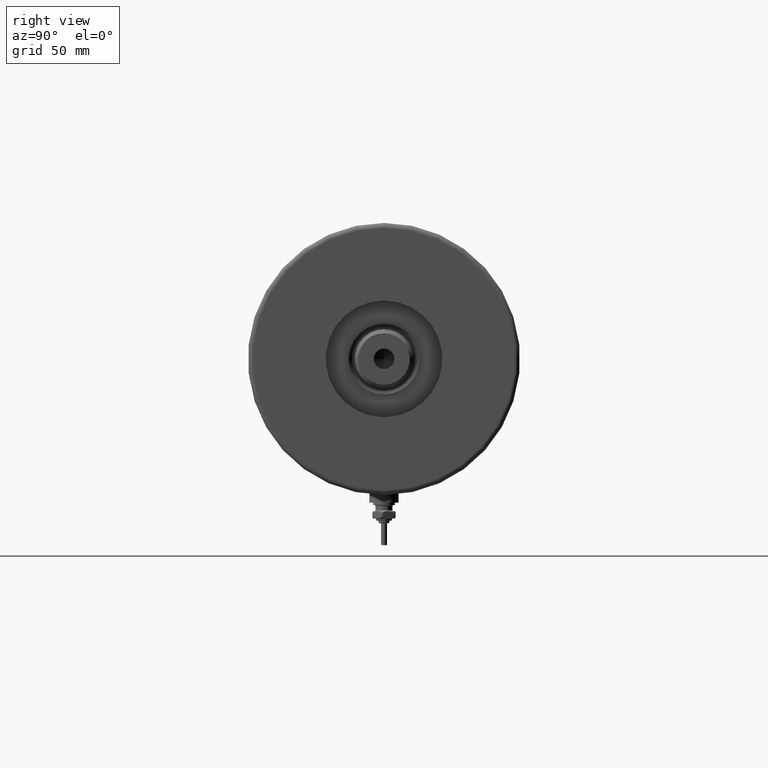
[diagram: clean part render]
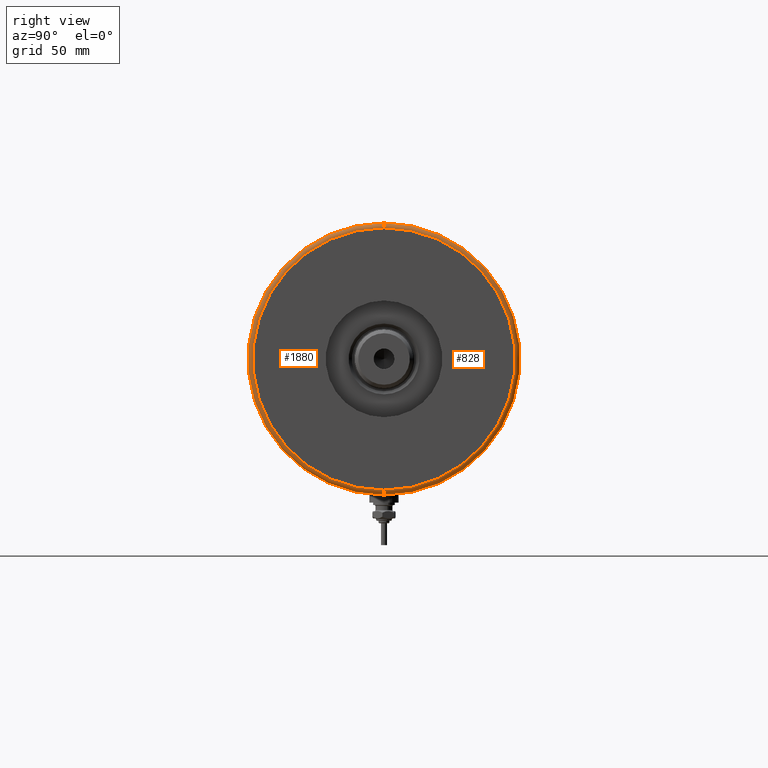
[diagram: same view with one multi-face feature highlighted, each face labeled with its STEP entity id]
A machine part, right view. The highlighted faces form ONE feature: a constant-radius fillet chain: 2 tangent blend faces with common blend radius 2 mm. The faces share edges in the B-rep.
Their STEP definitions:
[1] entity #828 (Torus):
#229 = CARTESIAN_POINT ( 'NONE',  ( -54.00000000000000000, 6.735557395310443404E-15, 32.00000000000000000 ) ) ;
#271 = DIRECTION ( 'NONE',  ( 1.000000000000000000, 0.000000000000000000, 0.000000000000000000 ) ) ;
#307 = ORIENTED_EDGE ( 'NONE', *, *, #2292, .F. ) ;
#314 = DIRECTION ( 'NONE',  ( 1.000000000000000000, 0.000000000000000000, 0.000000000000000000 ) ) ;
#350 = DIRECTION ( 'NONE',  ( 0.000000000000000000, -1.000000000000000000, 0.000000000000000000 ) ) ;
#373 = CARTESIAN_POINT ( 'NONE',  ( 54.00000000000000000, 0.000000000000000000, 32.00000000000000000 ) ) ;
#421 = ORIENTED_EDGE ( 'NONE', *, *, #3175, .F. ) ;
#500 = DIRECTION ( 'NONE',  ( -1.000000000000000000, 1.224646799147353454E-16, 0.000000000000000000 ) ) ;
#828 = ADVANCED_FACE ( 'NONE', ( #2207 ), #4640, .T. ) ;
#830 = CARTESIAN_POINT ( 'NONE',  ( 54.00000000000000000, 0.000000000000000000, 30.00000000000000000 ) ) ;
#1101 = CARTESIAN_POINT ( 'NONE',  ( -54.00000000000000000, 6.613092715395707467E-15, 30.00000000000000000 ) ) ;
#1248 = DIRECTION ( 'NONE',  ( 0.000000000000000000, 0.000000000000000000, 1.000000000000000000 ) ) ;
#1664 = CARTESIAN_POINT ( 'NONE',  ( 0.000000000000000000, 0.000000000000000000, 30.00000000000000000 ) ) ;
#1696 = CIRCLE ( 'NONE', #3518, 56.00000000000000000 ) ;
#1701 = DIRECTION ( 'NONE',  ( 0.000000000000000000, 0.000000000000000000, 1.000000000000000000 ) ) ;
#1909 = CARTESIAN_POINT ( 'NONE',  ( -56.00000000000000000, 0.000000000000000000, 30.00000000000000000 ) ) ;
#2137 = VERTEX_POINT ( 'NONE', #1909 ) ;
#2207 = FACE_OUTER_BOUND ( 'NONE', #5921, .T. ) ;
#2292 = EDGE_CURVE ( 'NONE', #5179, #2652, #4414, .T. ) ;
#2305 = DIRECTION ( 'NONE',  ( 0.000000000000000000, 0.000000000000000000, -1.000000000000000000 ) ) ;
#2652 = VERTEX_POINT ( 'NONE', #229 ) ;
#2690 = AXIS2_PLACEMENT_3D ( 'NONE', #3956, #1248, #5161 ) ;
#2876 = CARTESIAN_POINT ( 'NONE',  ( 56.00000000000000000, 6.858022075225178552E-15, 30.00000000000000000 ) ) ;
#3136 = CIRCLE ( 'NONE', #6076, 2.000000000000001776 ) ;
#3138 = VERTEX_POINT ( 'NONE', #2876 ) ;
#3175 = EDGE_CURVE ( 'NONE', #3138, #5179, #3912, .T. ) ;
#3292 = ORIENTED_EDGE ( 'NONE', *, *, #3588, .F. ) ;
#3518 = AXIS2_PLACEMENT_3D ( 'NONE', #3706, #6099, #271 ) ;
#3588 = EDGE_CURVE ( 'NONE', #2137, #3138, #1696, .T. ) ;
#3706 = CARTESIAN_POINT ( 'NONE',  ( 0.000000000000000000, 0.000000000000000000, 30.00000000000000000 ) ) ;
#3912 = CIRCLE ( 'NONE', #5436, 2.000000000000001776 ) ;
#3925 = AXIS2_PLACEMENT_3D ( 'NONE', #1664, #1701, #314 ) ;
#3956 = CARTESIAN_POINT ( 'NONE',  ( 0.000000000000000000, 0.000000000000000000, 32.00000000000000000 ) ) ;
#4347 = ORIENTED_EDGE ( 'NONE', *, *, #5712, .T. ) ;
#4414 = CIRCLE ( 'NONE', #2690, 54.00000000000000000 ) ;
#4640 = TOROIDAL_SURFACE ( 'NONE', #3925, 54.00000000000000000, 2.000000000000000000 ) ;
#5161 = DIRECTION ( 'NONE',  ( 1.000000000000000000, 0.000000000000000000, 0.000000000000000000 ) ) ;
#5179 = VERTEX_POINT ( 'NONE', #373 ) ;
#5392 = DIRECTION ( 'NONE',  ( 1.224646799147353207E-16, 1.000000000000000000, -0.000000000000000000 ) ) ;
#5436 = AXIS2_PLACEMENT_3D ( 'NONE', #830, #350, #2305 ) ;
#5712 = EDGE_CURVE ( 'NONE', #2137, #2652, #3136, .T. ) ;
#5921 = EDGE_LOOP ( 'NONE', ( #3292, #4347, #307, #421 ) ) ;
#6076 = AXIS2_PLACEMENT_3D ( 'NONE', #1101, #5392, #500 ) ;
#6099 = DIRECTION ( 'NONE',  ( -0.000000000000000000, -0.000000000000000000, -1.000000000000000000 ) ) ;
[2] entity #1880 (Torus):
#19 = ORIENTED_EDGE ( 'NONE', *, *, #3175, .T. ) ;
#103 = DIRECTION ( 'NONE',  ( 0.000000000000000000, 0.000000000000000000, 1.000000000000000000 ) ) ;
#131 = AXIS2_PLACEMENT_3D ( 'NONE', #5930, #103, #2564 ) ;
#229 = CARTESIAN_POINT ( 'NONE',  ( -54.00000000000000000, 6.735557395310443404E-15, 32.00000000000000000 ) ) ;
#350 = DIRECTION ( 'NONE',  ( 0.000000000000000000, -1.000000000000000000, 0.000000000000000000 ) ) ;
#373 = CARTESIAN_POINT ( 'NONE',  ( 54.00000000000000000, 0.000000000000000000, 32.00000000000000000 ) ) ;
#420 = DIRECTION ( 'NONE',  ( 0.000000000000000000, 0.000000000000000000, 1.000000000000000000 ) ) ;
#500 = DIRECTION ( 'NONE',  ( -1.000000000000000000, 1.224646799147353454E-16, 0.000000000000000000 ) ) ;
#830 = CARTESIAN_POINT ( 'NONE',  ( 54.00000000000000000, 0.000000000000000000, 30.00000000000000000 ) ) ;
#1101 = CARTESIAN_POINT ( 'NONE',  ( -54.00000000000000000, 6.613092715395707467E-15, 30.00000000000000000 ) ) ;
#1157 = FACE_OUTER_BOUND ( 'NONE', #2362, .T. ) ;
#1290 = AXIS2_PLACEMENT_3D ( 'NONE', #1421, #420, #2367 ) ;
#1421 = CARTESIAN_POINT ( 'NONE',  ( 0.000000000000000000, 0.000000000000000000, 32.00000000000000000 ) ) ;
#1880 = ADVANCED_FACE ( 'NONE', ( #1157 ), #5137, .T. ) ;
#1909 = CARTESIAN_POINT ( 'NONE',  ( -56.00000000000000000, 0.000000000000000000, 30.00000000000000000 ) ) ;
#1964 = EDGE_CURVE ( 'NONE', #3138, #2137, #6051, .T. ) ;
#2006 = DIRECTION ( 'NONE',  ( 1.000000000000000000, 0.000000000000000000, 0.000000000000000000 ) ) ;
#2064 = DIRECTION ( 'NONE',  ( -0.000000000000000000, -0.000000000000000000, -1.000000000000000000 ) ) ;
#2137 = VERTEX_POINT ( 'NONE', #1909 ) ;
#2198 = AXIS2_PLACEMENT_3D ( 'NONE', #2597, #2064, #2006 ) ;
#2303 = CIRCLE ( 'NONE', #1290, 54.00000000000000000 ) ;
#2305 = DIRECTION ( 'NONE',  ( 0.000000000000000000, 0.000000000000000000, -1.000000000000000000 ) ) ;
#2362 = EDGE_LOOP ( 'NONE', ( #4176, #4615, #19, #4581 ) ) ;
#2367 = DIRECTION ( 'NONE',  ( 1.000000000000000000, 0.000000000000000000, 0.000000000000000000 ) ) ;
#2564 = DIRECTION ( 'NONE',  ( 1.000000000000000000, 0.000000000000000000, 0.000000000000000000 ) ) ;
#2597 = CARTESIAN_POINT ( 'NONE',  ( 0.000000000000000000, 0.000000000000000000, 30.00000000000000000 ) ) ;
#2652 = VERTEX_POINT ( 'NONE', #229 ) ;
#2876 = CARTESIAN_POINT ( 'NONE',  ( 56.00000000000000000, 6.858022075225178552E-15, 30.00000000000000000 ) ) ;
#3136 = CIRCLE ( 'NONE', #6076, 2.000000000000001776 ) ;
#3138 = VERTEX_POINT ( 'NONE', #2876 ) ;
#3175 = EDGE_CURVE ( 'NONE', #3138, #5179, #3912, .T. ) ;
#3912 = CIRCLE ( 'NONE', #5436, 2.000000000000001776 ) ;
#4176 = ORIENTED_EDGE ( 'NONE', *, *, #5712, .F. ) ;
#4313 = EDGE_CURVE ( 'NONE', #2652, #5179, #2303, .T. ) ;
#4581 = ORIENTED_EDGE ( 'NONE', *, *, #4313, .F. ) ;
#4615 = ORIENTED_EDGE ( 'NONE', *, *, #1964, .F. ) ;
#5137 = TOROIDAL_SURFACE ( 'NONE', #131, 54.00000000000000000, 2.000000000000000000 ) ;
#5179 = VERTEX_POINT ( 'NONE', #373 ) ;
#5392 = DIRECTION ( 'NONE',  ( 1.224646799147353207E-16, 1.000000000000000000, -0.000000000000000000 ) ) ;
#5436 = AXIS2_PLACEMENT_3D ( 'NONE', #830, #350, #2305 ) ;
#5712 = EDGE_CURVE ( 'NONE', #2137, #2652, #3136, .T. ) ;
#5930 = CARTESIAN_POINT ( 'NONE',  ( 0.000000000000000000, 0.000000000000000000, 30.00000000000000000 ) ) ;
#6051 = CIRCLE ( 'NONE', #2198, 56.00000000000000000 ) ;
#6076 = AXIS2_PLACEMENT_3D ( 'NONE', #1101, #5392, #500 ) ;